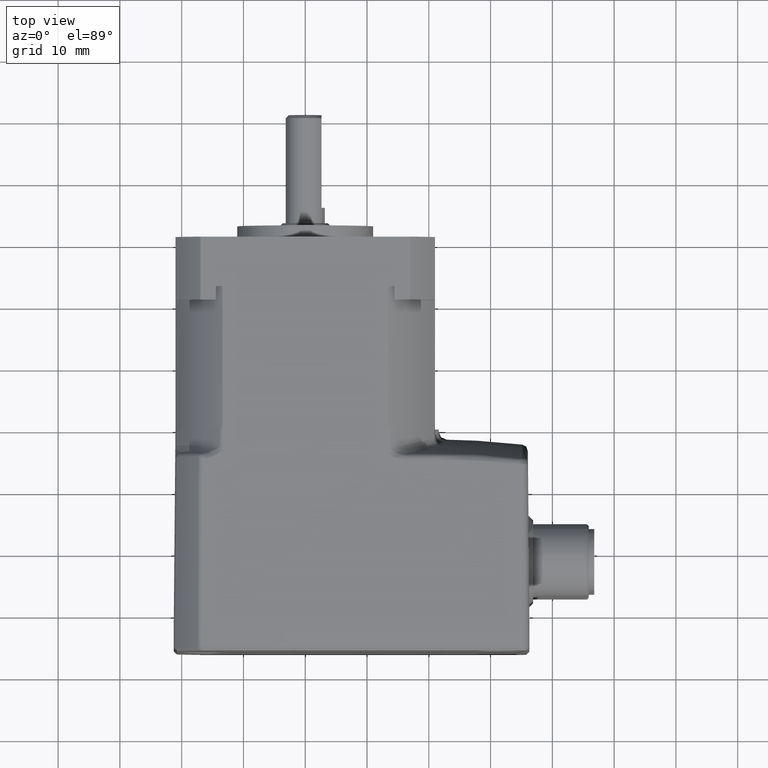
[diagram: clean part render]
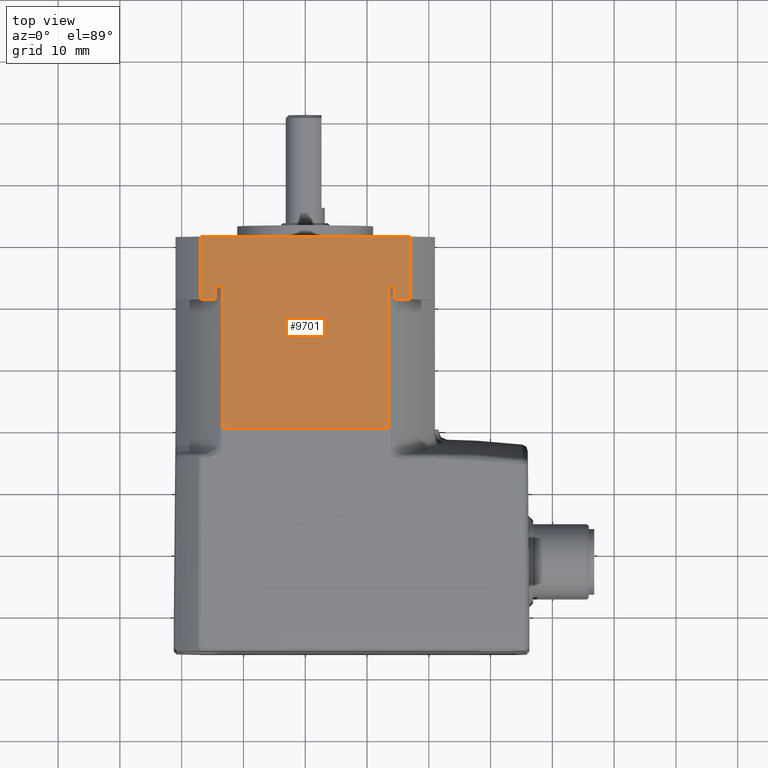
[diagram: same view with one face highlighted and labeled with its STEP entity id]
A machine part, top view. The second image highlights one B-rep face of the part: STEP entity #9701.
In plain terms, the highlighted planar face has unit normal (-0, 0, 1).
Its self-contained STEP definition (entity closure, byte-faithful):
#114 = ORIENTED_EDGE ( 'NONE', *, *, #1327, .F. ) ;
#773 = LINE ( 'NONE', #6081, #3783 ) ;
#885 = EDGE_CURVE ( 'NONE', #4720, #4808, #7390, .T. ) ;
#917 = EDGE_CURVE ( 'NONE', #3336, #4593, #4424, .T. ) ;
#932 = DIRECTION ( 'NONE',  ( 0.000000000000000000, -1.000000000000000000, 0.000000000000000000 ) ) ;
#953 = LINE ( 'NONE', #15368, #3477 ) ;
#1299 = CARTESIAN_POINT ( 'NONE',  ( 16.97056274848745971, 20.80000000000001137, 20.99999999999935341 ) ) ;
#1327 = EDGE_CURVE ( 'NONE', #9434, #5832, #7895, .T. ) ;
#1567 = DIRECTION ( 'NONE',  ( 1.000000000000000000, 0.000000000000000000, 1.292963552335232311E-16 ) ) ;
#1581 = CARTESIAN_POINT ( 'NONE',  ( 13.41664637679622807, 22.99999999999999645, 21.00000000000001066 ) ) ;
#1868 = EDGE_CURVE ( 'NONE', #9984, #13779, #7011, .T. ) ;
#1926 = CARTESIAN_POINT ( 'NONE',  ( 14.46547614149357130, 23.00000000000000711, 20.99999999999935341 ) ) ;
#1937 = VECTOR ( 'NONE', #6242, 1000.000000000000000 ) ;
#2541 = EDGE_CURVE ( 'NONE', #9276, #7235, #14348, .T. ) ;
#2832 = ORIENTED_EDGE ( 'NONE', *, *, #7099, .F. ) ;
#2883 = CARTESIAN_POINT ( 'NONE',  ( 36.00000000000000711, -0.000000000000000000, 20.99999999999999645 ) ) ;
#2903 = ORIENTED_EDGE ( 'NONE', *, *, #10116, .F. ) ;
#3110 = CARTESIAN_POINT ( 'NONE',  ( 13.41664637679622807, -21.00000000000000000, 21.00000000000001066 ) ) ;
#3336 = VERTEX_POINT ( 'NONE', #8086 ) ;
#3477 = VECTOR ( 'NONE', #14224, 1000.000000000000000 ) ;
#3783 = VECTOR ( 'NONE', #11395, 1000.000000000000000 ) ;
#3919 = CARTESIAN_POINT ( 'NONE',  ( -13.41664637679622096, 0.000000000000000000, 21.00000000000000711 ) ) ;
#4023 = EDGE_CURVE ( 'NONE', #11570, #4593, #16226, .T. ) ;
#4101 = VECTOR ( 'NONE', #15043, 1000.000000000000000 ) ;
#4158 = LINE ( 'NONE', #14909, #11698 ) ;
#4294 = CARTESIAN_POINT ( 'NONE',  ( 16.97056274848745971, 31.00000000000000711, 20.99999999999935341 ) ) ;
#4299 = ORIENTED_EDGE ( 'NONE', *, *, #885, .F. ) ;
#4424 = LINE ( 'NONE', #3110, #7212 ) ;
#4461 = EDGE_CURVE ( 'NONE', #8386, #11570, #4158, .T. ) ;
#4593 = VERTEX_POINT ( 'NONE', #1581 ) ;
#4664 = AXIS2_PLACEMENT_3D ( 'NONE', #13510, #15979, #1567 ) ;
#4673 = CARTESIAN_POINT ( 'NONE',  ( -1.110223024625156540E-12, 23.00000000000000711, 20.99999999999935341 ) ) ;
#4720 = VERTEX_POINT ( 'NONE', #9150 ) ;
#4808 = VERTEX_POINT ( 'NONE', #10961 ) ;
#4880 = EDGE_LOOP ( 'NONE', ( #15619, #10882, #12612, #2832, #9335, #114, #2903, #8284, #12341, #4299, #13652, #6816, #9688, #15288 ) ) ;
#5098 = CARTESIAN_POINT ( 'NONE',  ( 46.34142135619890013, 31.00000000000000711, 20.99999999999890932 ) ) ;
#5359 = CARTESIAN_POINT ( 'NONE',  ( -13.41664637679622096, 0.000000000000000000, 21.00000000000000711 ) ) ;
#5439 = DIRECTION ( 'NONE',  ( -1.000000000000000000, 0.000000000000000000, 2.220446049250312588E-16 ) ) ;
#5498 = CARTESIAN_POINT ( 'NONE',  ( -14.46547614149579175, 20.80000000000001137, 20.99999999999935341 ) ) ;
#5832 = VERTEX_POINT ( 'NONE', #4294 ) ;
#6078 = LINE ( 'NONE', #11492, #1937 ) ;
#6081 = CARTESIAN_POINT ( 'NONE',  ( -13.41664637679622096, -21.00000000000000000, 21.00000000000000711 ) ) ;
#6242 = DIRECTION ( 'NONE',  ( -1.000000000000000000, 0.000000000000000000, 2.220446049250312588E-16 ) ) ;
#6388 = VECTOR ( 'NONE', #15176, 1000.000000000000000 ) ;
#6396 = CARTESIAN_POINT ( 'NONE',  ( 13.26651064204474118, -0.000000000000000000, 21.00000000000000000 ) ) ;
#6410 = DIRECTION ( 'NONE',  ( 1.000000000000000000, 0.000000000000000000, -2.220446049250312588E-16 ) ) ;
#6454 = LINE ( 'NONE', #3919, #16926 ) ;
#6531 = PLANE ( 'NONE',  #4664 ) ;
#6654 = CARTESIAN_POINT ( 'NONE',  ( -13.26651064204475183, 0.000000000000000000, 21.00000000000000000 ) ) ;
#6754 = LINE ( 'NONE', #14803, #6977 ) ;
#6816 = ORIENTED_EDGE ( 'NONE', *, *, #10932, .T. ) ;
#6977 = VECTOR ( 'NONE', #9619, 1000.000000000000000 ) ;
#7011 = LINE ( 'NONE', #2883, #4101 ) ;
#7099 = EDGE_CURVE ( 'NONE', #7829, #8386, #6078, .T. ) ;
#7212 = VECTOR ( 'NONE', #8448, 1000.000000000000000 ) ;
#7235 = VERTEX_POINT ( 'NONE', #16791 ) ;
#7390 = LINE ( 'NONE', #4673, #6388 ) ;
#7476 = CARTESIAN_POINT ( 'NONE',  ( -16.97056274848968016, 31.00000000000000711, 20.99999999999935341 ) ) ;
#7791 = DIRECTION ( 'NONE',  ( -1.000000000000000000, 0.000000000000000000, 2.220446049250312588E-16 ) ) ;
#7829 = VERTEX_POINT ( 'NONE', #1299 ) ;
#7895 = LINE ( 'NONE', #5098, #11678 ) ;
#8086 = CARTESIAN_POINT ( 'NONE',  ( 13.41664637679622807, 0.000000000000000000, 21.00000000000001066 ) ) ;
#8284 = ORIENTED_EDGE ( 'NONE', *, *, #2541, .F. ) ;
#8386 = VERTEX_POINT ( 'NONE', #12121 ) ;
#8448 = DIRECTION ( 'NONE',  ( 0.000000000000000000, 1.000000000000000000, 0.000000000000000000 ) ) ;
#9150 = CARTESIAN_POINT ( 'NONE',  ( -13.41664637679622096, 22.99999999999999645, 21.00000000000000711 ) ) ;
#9276 = VERTEX_POINT ( 'NONE', #5498 ) ;
#9335 = ORIENTED_EDGE ( 'NONE', *, *, #16878, .F. ) ;
#9415 = EDGE_CURVE ( 'NONE', #4808, #9276, #15688, .T. ) ;
#9434 = VERTEX_POINT ( 'NONE', #7476 ) ;
#9619 = DIRECTION ( 'NONE',  ( 0.000000000000000000, -1.000000000000000000, 0.000000000000000000 ) ) ;
#9632 = EDGE_CURVE ( 'NONE', #9984, #3336, #6454, .T. ) ;
#9640 = DIRECTION ( 'NONE',  ( -0.000000000000000000, 1.000000000000000000, -0.000000000000000000 ) ) ;
#9688 = ORIENTED_EDGE ( 'NONE', *, *, #1868, .F. ) ;
#9701 = ADVANCED_FACE ( 'NONE', ( #13154 ), #6531, .T. ) ;
#9984 = VERTEX_POINT ( 'NONE', #6396 ) ;
#10000 = DIRECTION ( 'NONE',  ( -0.000000000000000000, 1.000000000000000000, -0.000000000000000000 ) ) ;
#10116 = EDGE_CURVE ( 'NONE', #7235, #9434, #12549, .T. ) ;
#10187 = VECTOR ( 'NONE', #932, 1000.000000000000000 ) ;
#10271 = VECTOR ( 'NONE', #5439, 1000.000000000000000 ) ;
#10882 = ORIENTED_EDGE ( 'NONE', *, *, #4023, .F. ) ;
#10896 = VERTEX_POINT ( 'NONE', #5359 ) ;
#10932 = EDGE_CURVE ( 'NONE', #10896, #13779, #953, .T. ) ;
#10961 = CARTESIAN_POINT ( 'NONE',  ( -14.46547614149579175, 23.00000000000000711, 20.99999999999935341 ) ) ;
#11395 = DIRECTION ( 'NONE',  ( 0.000000000000000000, 1.000000000000000000, 0.000000000000000000 ) ) ;
#11492 = CARTESIAN_POINT ( 'NONE',  ( -1.110223024625156540E-12, 20.80000000000001137, 20.99999999999935341 ) ) ;
#11570 = VERTEX_POINT ( 'NONE', #1926 ) ;
#11678 = VECTOR ( 'NONE', #6410, 1000.000000000000000 ) ;
#11698 = VECTOR ( 'NONE', #9640, 1000.000000000000000 ) ;
#12121 = CARTESIAN_POINT ( 'NONE',  ( 14.46547614149357130, 20.80000000000001137, 20.99999999999935341 ) ) ;
#12193 = EDGE_CURVE ( 'NONE', #10896, #4720, #773, .T. ) ;
#12194 = VECTOR ( 'NONE', #10000, 1000.000000000000000 ) ;
#12341 = ORIENTED_EDGE ( 'NONE', *, *, #9415, .F. ) ;
#12549 = LINE ( 'NONE', #16659, #12194 ) ;
#12612 = ORIENTED_EDGE ( 'NONE', *, *, #4461, .F. ) ;
#12866 = CARTESIAN_POINT ( 'NONE',  ( -14.46547614150112082, 20.80000000000001137, 20.99999999999935341 ) ) ;
#13097 = CARTESIAN_POINT ( 'NONE',  ( -1.110223024625156540E-12, 20.80000000000001137, 20.99999999999935341 ) ) ;
#13154 = FACE_OUTER_BOUND ( 'NONE', #4880, .T. ) ;
#13176 = VECTOR ( 'NONE', #7791, 1000.000000000000000 ) ;
#13510 = CARTESIAN_POINT ( 'NONE',  ( -13.41664637679622096, -21.00000000000000000, 21.00000000000000711 ) ) ;
#13652 = ORIENTED_EDGE ( 'NONE', *, *, #12193, .F. ) ;
#13779 = VERTEX_POINT ( 'NONE', #6654 ) ;
#14224 = DIRECTION ( 'NONE',  ( 1.000000000000000000, 0.000000000000000000, 1.292963552335232311E-16 ) ) ;
#14348 = LINE ( 'NONE', #13097, #13176 ) ;
#14803 = CARTESIAN_POINT ( 'NONE',  ( 16.97056274849889590, 20.80000000000001137, 20.99999999999935341 ) ) ;
#14909 = CARTESIAN_POINT ( 'NONE',  ( 14.46547614149890038, 20.80000000000001137, 20.99999999999935341 ) ) ;
#15043 = DIRECTION ( 'NONE',  ( -1.000000000000000000, 0.000000000000000000, 1.110223024625156540E-16 ) ) ;
#15176 = DIRECTION ( 'NONE',  ( -1.000000000000000000, 0.000000000000000000, 2.220446049250312588E-16 ) ) ;
#15288 = ORIENTED_EDGE ( 'NONE', *, *, #9632, .T. ) ;
#15368 = CARTESIAN_POINT ( 'NONE',  ( -13.41664637679622096, 0.000000000000000000, 21.00000000000000711 ) ) ;
#15619 = ORIENTED_EDGE ( 'NONE', *, *, #917, .T. ) ;
#15624 = DIRECTION ( 'NONE',  ( 1.000000000000000000, 0.000000000000000000, 1.292963552335232311E-16 ) ) ;
#15688 = LINE ( 'NONE', #12866, #10187 ) ;
#15979 = DIRECTION ( 'NONE',  ( -1.292963552335232311E-16, 0.000000000000000000, 1.000000000000000000 ) ) ;
#16226 = LINE ( 'NONE', #16304, #10271 ) ;
#16304 = CARTESIAN_POINT ( 'NONE',  ( -1.110223024625156540E-12, 23.00000000000000711, 20.99999999999935341 ) ) ;
#16659 = CARTESIAN_POINT ( 'NONE',  ( -16.97056274850111635, 20.80000000000001137, 20.99999999999935341 ) ) ;
#16791 = CARTESIAN_POINT ( 'NONE',  ( -16.97056274848968016, 20.80000000000001137, 20.99999999999935341 ) ) ;
#16878 = EDGE_CURVE ( 'NONE', #5832, #7829, #6754, .T. ) ;
#16926 = VECTOR ( 'NONE', #15624, 1000.000000000000000 ) ;